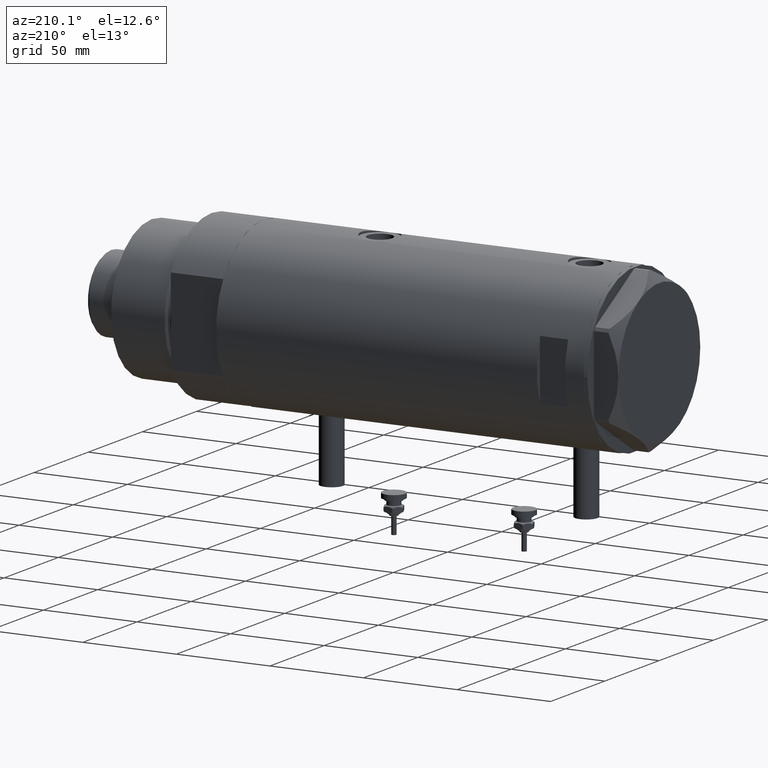
[diagram: clean part render]
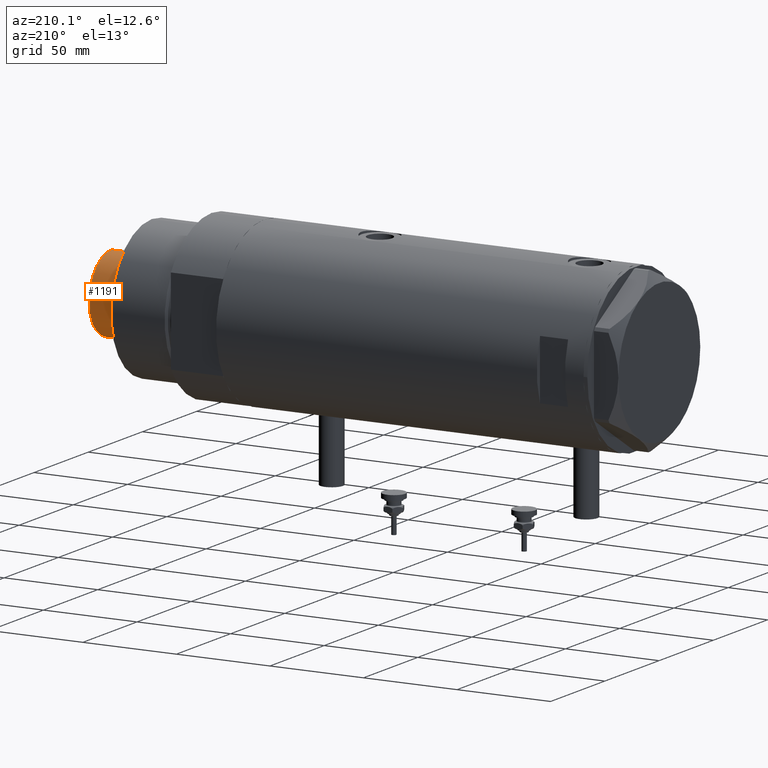
[diagram: same view with one face highlighted and labeled with its STEP entity id]
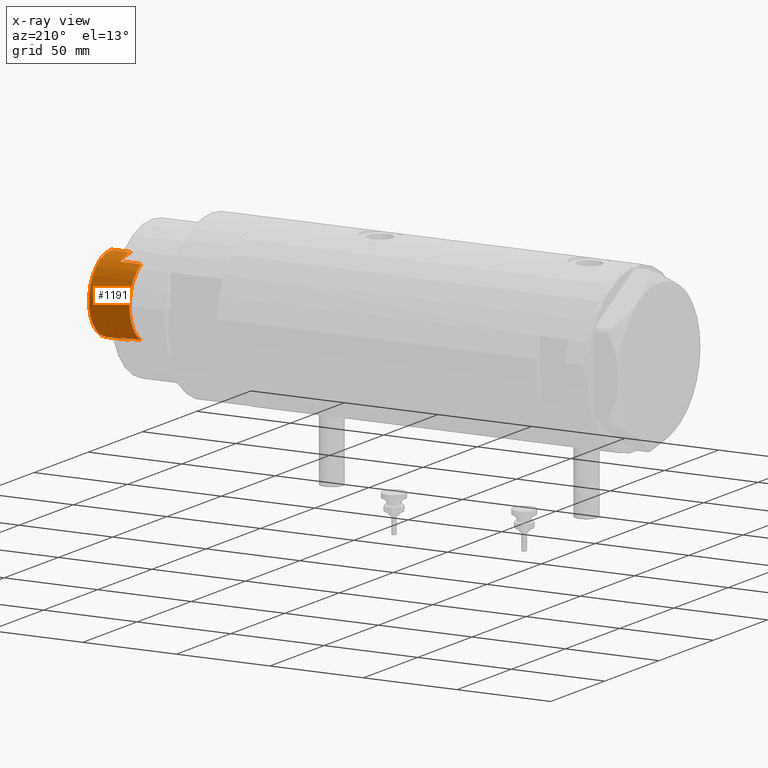
[diagram: x-ray of the same camera — body ghosted, the highlighted face saturated]
A machine part, auxiliary view. The second image highlights one B-rep face of the part: STEP entity #1191.
The next image is the same camera in x-ray: the body ghosted, the highlighted face saturated — about 0% of this face is hidden behind the body in this view.
In plain terms, the highlighted cylindrical surface (partial cylindrical patch) has radius 20.5 mm, axis along (-1, -0, 0).
Its self-contained STEP definition (entity closure, byte-faithful):
#92 = AXIS2_PLACEMENT_3D ( 'NONE', #812, #1242, #4086 ) ;
#142 = ORIENTED_EDGE ( 'NONE', *, *, #2745, .T. ) ;
#172 = CARTESIAN_POINT ( 'NONE',  ( -20.50000000000000000, 0.000000000000000000, 241.3000000000000114 ) ) ;
#330 = CARTESIAN_POINT ( 'NONE',  ( -20.50000000000000355, 0.000000000000000000, 241.3000000000000114 ) ) ;
#363 = CIRCLE ( 'NONE', #92, 20.50000000000000355 ) ;
#410 = CARTESIAN_POINT ( 'NONE',  ( 0.000000000000000000, 0.000000000000000000, 241.3000000000000114 ) ) ;
#430 = DIRECTION ( 'NONE',  ( 1.000000000000000000, 0.000000000000000000, 0.000000000000000000 ) ) ;
#574 = CARTESIAN_POINT ( 'NONE',  ( -20.50000000000000355, 0.000000000000000000, 251.9000000000001194 ) ) ;
#725 = DIRECTION ( 'NONE',  ( 0.000000000000000000, 0.000000000000000000, 1.000000000000000000 ) ) ;
#812 = CARTESIAN_POINT ( 'NONE',  ( 0.000000000000000000, 0.000000000000000000, 251.9000000000001194 ) ) ;
#824 = VERTEX_POINT ( 'NONE', #2025 ) ;
#834 = LINE ( 'NONE', #3649, #4432 ) ;
#841 = VECTOR ( 'NONE', #5071, 1000.000000000000000 ) ;
#968 = VERTEX_POINT ( 'NONE', #3490 ) ;
#1161 = CARTESIAN_POINT ( 'NONE',  ( 0.000000000000000000, 0.000000000000000000, 241.3000000000000114 ) ) ;
#1164 = EDGE_CURVE ( 'NONE', #5079, #3521, #834, .T. ) ;
#1191 = ADVANCED_FACE ( 'NONE', ( #5492 ), #2735, .T. ) ;
#1238 = CIRCLE ( 'NONE', #4663, 20.49999999999998934 ) ;
#1242 = DIRECTION ( 'NONE',  ( 0.000000000000000000, 0.000000000000000000, -1.000000000000000000 ) ) ;
#1254 = LINE ( 'NONE', #330, #3089 ) ;
#1396 = ORIENTED_EDGE ( 'NONE', *, *, #5413, .T. ) ;
#1463 = EDGE_CURVE ( 'NONE', #1893, #4942, #1254, .T. ) ;
#1557 = DIRECTION ( 'NONE',  ( 1.000000000000000000, 0.000000000000000000, 0.000000000000000000 ) ) ;
#1757 = ORIENTED_EDGE ( 'NONE', *, *, #2298, .T. ) ;
#1872 = CARTESIAN_POINT ( 'NONE',  ( 20.50000000000000355, 2.510525938252074481E-15, 251.9000000000001194 ) ) ;
#1893 = VERTEX_POINT ( 'NONE', #574 ) ;
#1937 = CIRCLE ( 'NONE', #3872, 20.50000000000000000 ) ;
#1968 = DIRECTION ( 'NONE',  ( 1.000000000000000000, 0.000000000000000000, 0.000000000000000000 ) ) ;
#2025 = CARTESIAN_POINT ( 'NONE',  ( 20.50000000000000000, 2.510525938252074481E-15, 241.3000000000000114 ) ) ;
#2155 = LINE ( 'NONE', #4018, #5795 ) ;
#2189 = CARTESIAN_POINT ( 'NONE',  ( 20.50000000000000355, 2.510525938252074481E-15, 241.3000000000000114 ) ) ;
#2298 = EDGE_CURVE ( 'NONE', #824, #5079, #1937, .T. ) ;
#2311 = AXIS2_PLACEMENT_3D ( 'NONE', #410, #4137, #5968 ) ;
#2421 = ORIENTED_EDGE ( 'NONE', *, *, #3040, .T. ) ;
#2482 = ORIENTED_EDGE ( 'NONE', *, *, #1463, .F. ) ;
#2735 = CYLINDRICAL_SURFACE ( 'NONE', #2311, 20.50000000000000355 ) ;
#2739 = EDGE_CURVE ( 'NONE', #968, #4674, #2155, .T. ) ;
#2745 = EDGE_CURVE ( 'NONE', #1893, #4729, #363, .T. ) ;
#2778 = EDGE_LOOP ( 'NONE', ( #142, #2421, #1757, #5328, #4146, #4590, #1396, #2482 ) ) ;
#3011 = CARTESIAN_POINT ( 'NONE',  ( 17.97852886083842705, 9.849999999999997868, 230.3000000000000114 ) ) ;
#3040 = EDGE_CURVE ( 'NONE', #4729, #824, #4537, .T. ) ;
#3089 = VECTOR ( 'NONE', #5757, 1000.000000000000000 ) ;
#3404 = CIRCLE ( 'NONE', #4366, 20.50000000000000000 ) ;
#3490 = CARTESIAN_POINT ( 'NONE',  ( -17.97852886083842705, 9.849999999999997868, 241.3000000000000114 ) ) ;
#3521 = VERTEX_POINT ( 'NONE', #3011 ) ;
#3612 = DIRECTION ( 'NONE',  ( 0.000000000000000000, 0.000000000000000000, 1.000000000000000000 ) ) ;
#3649 = CARTESIAN_POINT ( 'NONE',  ( 17.97852886083842705, 9.849999999999997868, 241.3000000000000114 ) ) ;
#3712 = CARTESIAN_POINT ( 'NONE',  ( 0.000000000000000000, 0.000000000000000000, 230.3000000000000114 ) ) ;
#3872 = AXIS2_PLACEMENT_3D ( 'NONE', #1161, #725, #1557 ) ;
#4017 = CARTESIAN_POINT ( 'NONE',  ( 17.97852886083842705, 9.849999999999997868, 241.3000000000000114 ) ) ;
#4018 = CARTESIAN_POINT ( 'NONE',  ( -17.97852886083842705, 9.849999999999997868, 241.3000000000000114 ) ) ;
#4059 = CARTESIAN_POINT ( 'NONE',  ( -17.97852886083842705, 9.849999999999965894, 230.3000000000000114 ) ) ;
#4086 = DIRECTION ( 'NONE',  ( 1.000000000000000000, 0.000000000000000000, 0.000000000000000000 ) ) ;
#4108 = DIRECTION ( 'NONE',  ( -0.000000000000000000, -0.000000000000000000, -1.000000000000000000 ) ) ;
#4137 = DIRECTION ( 'NONE',  ( -0.000000000000000000, -0.000000000000000000, -1.000000000000000000 ) ) ;
#4146 = ORIENTED_EDGE ( 'NONE', *, *, #4292, .T. ) ;
#4292 = EDGE_CURVE ( 'NONE', #3521, #4674, #1238, .T. ) ;
#4366 = AXIS2_PLACEMENT_3D ( 'NONE', #5278, #4769, #1968 ) ;
#4432 = VECTOR ( 'NONE', #4108, 1000.000000000000000 ) ;
#4472 = DIRECTION ( 'NONE',  ( -0.000000000000000000, -0.000000000000000000, -1.000000000000000000 ) ) ;
#4537 = LINE ( 'NONE', #2189, #841 ) ;
#4590 = ORIENTED_EDGE ( 'NONE', *, *, #2739, .F. ) ;
#4663 = AXIS2_PLACEMENT_3D ( 'NONE', #3712, #3612, #430 ) ;
#4674 = VERTEX_POINT ( 'NONE', #4059 ) ;
#4729 = VERTEX_POINT ( 'NONE', #1872 ) ;
#4769 = DIRECTION ( 'NONE',  ( 0.000000000000000000, 0.000000000000000000, 1.000000000000000000 ) ) ;
#4942 = VERTEX_POINT ( 'NONE', #172 ) ;
#5071 = DIRECTION ( 'NONE',  ( -0.000000000000000000, -0.000000000000000000, -1.000000000000000000 ) ) ;
#5079 = VERTEX_POINT ( 'NONE', #4017 ) ;
#5278 = CARTESIAN_POINT ( 'NONE',  ( 0.000000000000000000, 0.000000000000000000, 241.3000000000000114 ) ) ;
#5328 = ORIENTED_EDGE ( 'NONE', *, *, #1164, .T. ) ;
#5413 = EDGE_CURVE ( 'NONE', #968, #4942, #3404, .T. ) ;
#5492 = FACE_OUTER_BOUND ( 'NONE', #2778, .T. ) ;
#5757 = DIRECTION ( 'NONE',  ( -0.000000000000000000, -0.000000000000000000, -1.000000000000000000 ) ) ;
#5795 = VECTOR ( 'NONE', #4472, 1000.000000000000000 ) ;
#5968 = DIRECTION ( 'NONE',  ( -1.000000000000000000, 0.000000000000000000, 0.000000000000000000 ) ) ;